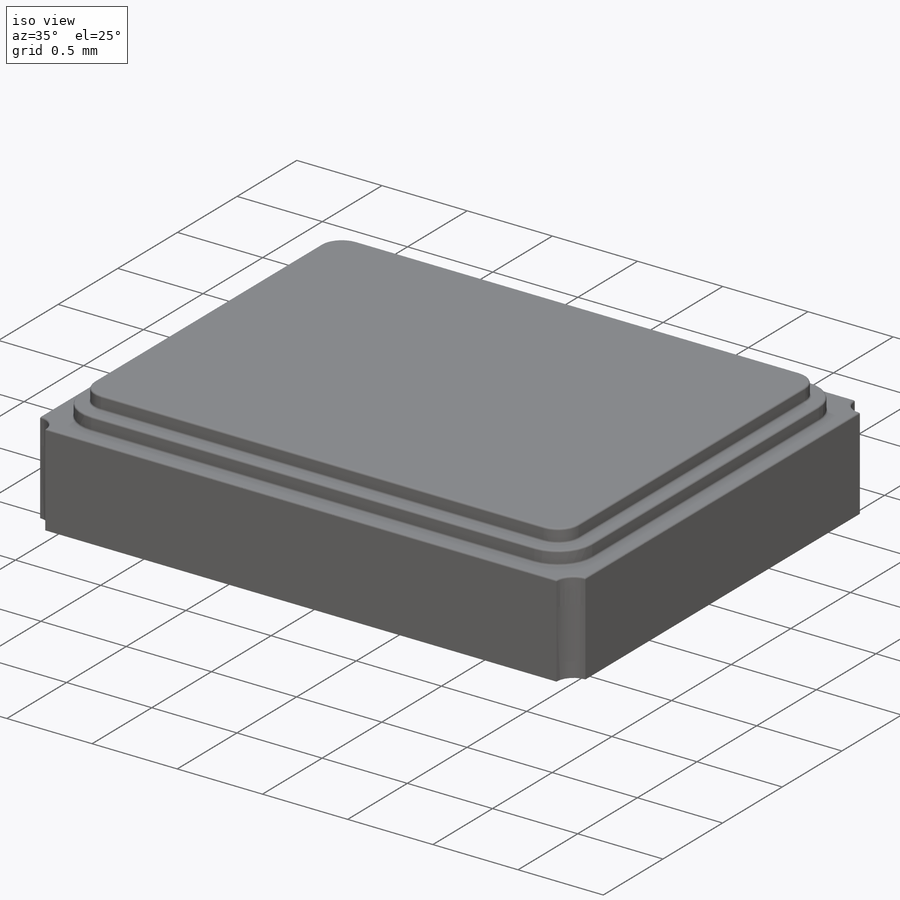
[diagram: iso view]
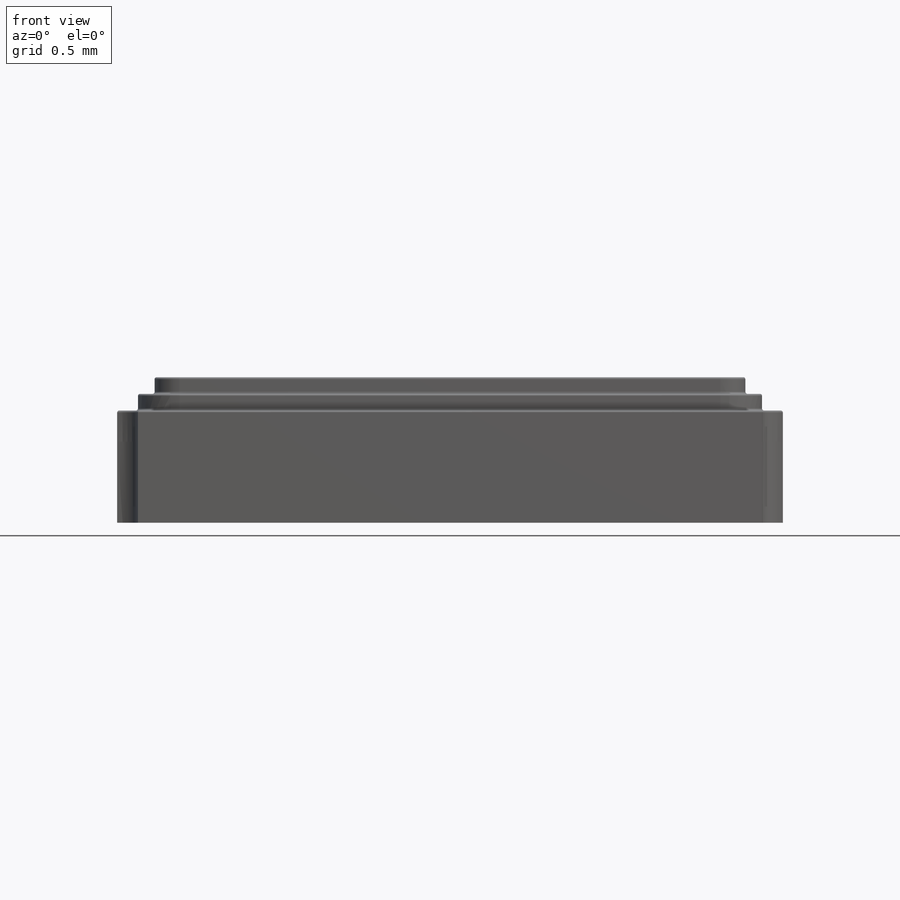
[diagram: front view]
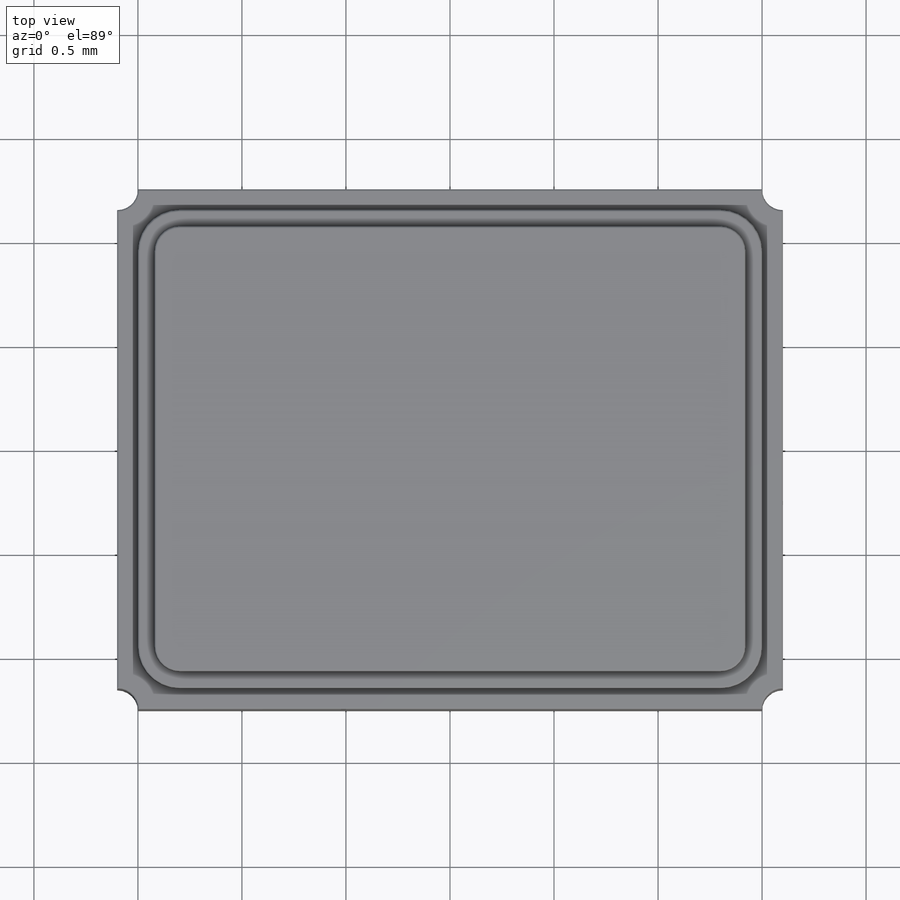
[diagram: top view]
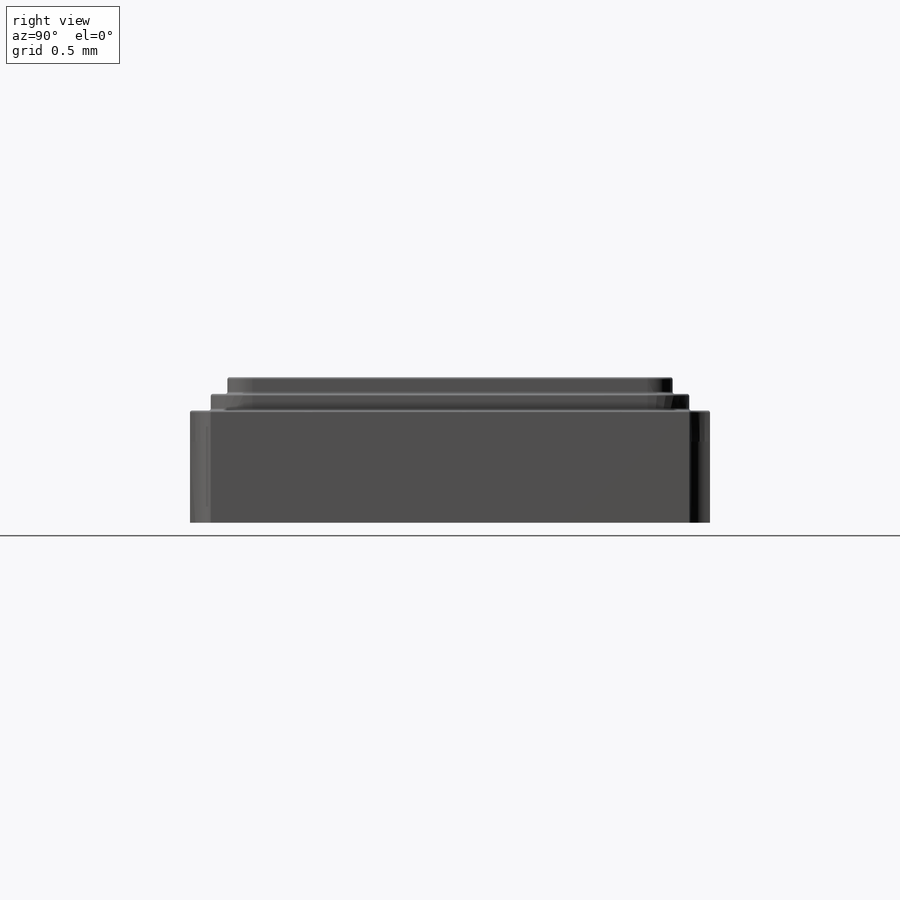
[diagram: right view]
SOLIDWORKS PART (.sldprt)
format: sldprt  version: not decoded by parser v0  size: 549,376 bytes
history: native  units: mm
features: sketch x6, extrude x3, material x1, fillet x1 (+12 scaffold rows collapsed)
feature tree (23):
  scaffold x12  (default folders/planes/origin — collapsed)
  material  "Material <not specified>"
  sketch  "Sketch1"  dims[D3=0.2mm D1=3.2mm D2=2.5mm D4=2.3mm D5=3.0mm]
  extrude  "Boss-Extrude1"  Depth=0.54mm
  sketch  "Sketch2"  dims[D3=0.2mm D1=0.1mm D2=0.1mm]
  extrude  "Boss-Extrude2"  Depth=0.08mm
  sketch  "Sketch4"  dims[D1=0.08mm]
  extrude  "Boss-Extrude3"  Depth=0.08mm
  sketch  "Sketch5"  dims[c1.D7=0.2mm c1.D1=0.6mm c1.D2=~1.333343mm c2.D2=90.0deg c3.D2=0.35mm c3.D3=~0.29932mm c4.D3=45.0deg c4.D4=0.3mm c4.D5=0.07mm c4.D6=0.07mm c4.D7=0.07mm]
  sketch  "Sketch6"  dims[D1=0.15mm]
  sketch  "Sketch7"  dims[D1=0.15mm]
  fillet  "Fillet1"  Radius=0.01mm
decode coverage: 10 of 10 modeling features carry decoded parameters
note: ~ marks probable driven/reference dimensions
note: suppression state not decoded; provenance and decode notes live in map.json
